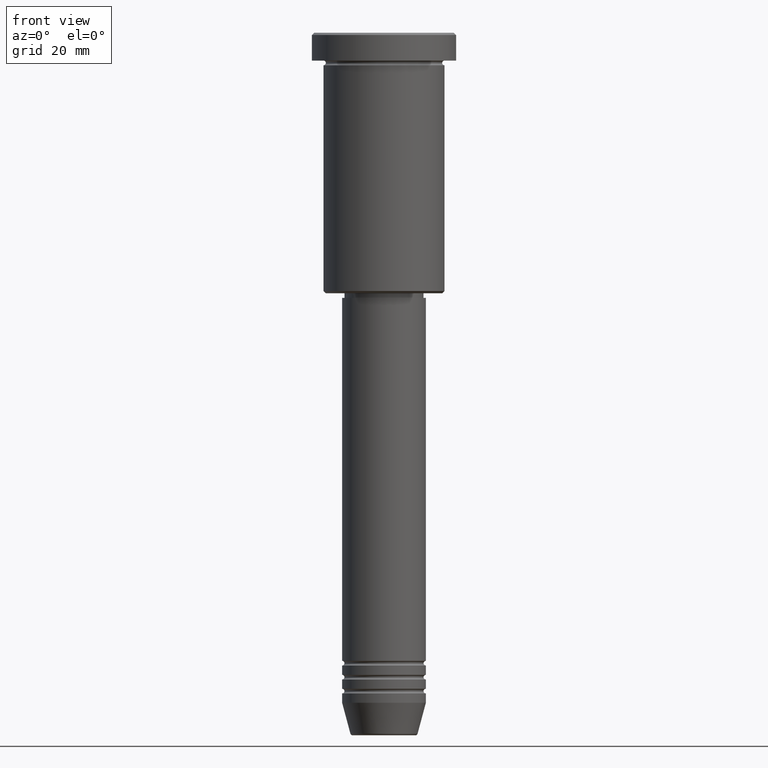
[diagram: clean part render]
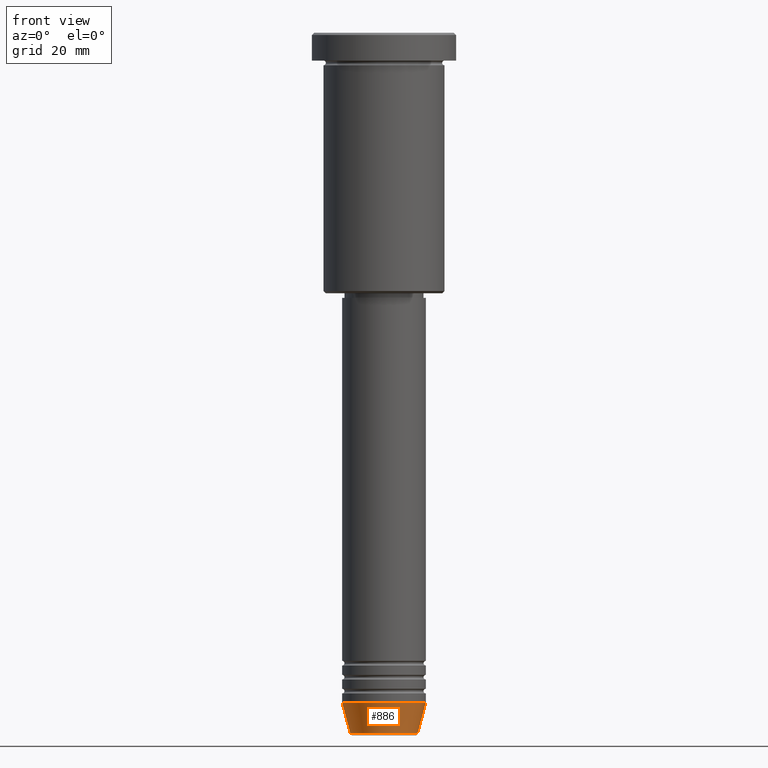
[diagram: same view with one face highlighted and labeled with its STEP entity id]
A machine part, front view. The second image highlights one B-rep face of the part: STEP entity #886.
In plain terms, the highlighted conical surface has half-angle 15 deg.
Its self-contained STEP definition (entity closure, byte-faithful):
#16 = CARTESIAN_POINT ( 'NONE',  ( -9.000000000000000000, 1.102182119232617714E-15, -144.0000000000000284 ) ) ;
#50 = VERTEX_POINT ( 'NONE', #456 ) ;
#62 = CARTESIAN_POINT ( 'NONE',  ( -7.223655072137189492, 9.934123627281765110E-16, -150.6294095225512990 ) ) ;
#110 = CARTESIAN_POINT ( 'NONE',  ( 9.000000000000000000, 0.000000000000000000, -144.0000000000000284 ) ) ;
#145 = CARTESIAN_POINT ( 'NONE',  ( 0.000000000000000000, 0.000000000000000000, -150.6294095225512990 ) ) ;
#165 = ORIENTED_EDGE ( 'NONE', *, *, #820, .F. ) ;
#193 = LINE ( 'NONE', #261, #332 ) ;
#261 = CARTESIAN_POINT ( 'NONE',  ( 9.000000000000000000, 0.000000000000000000, -144.0000000000000284 ) ) ;
#332 = VECTOR ( 'NONE', #438, 1000.000000000000000 ) ;
#366 = DIRECTION ( 'NONE',  ( 1.000000000000000000, 0.000000000000000000, 0.000000000000000000 ) ) ;
#392 = ORIENTED_EDGE ( 'NONE', *, *, #1053, .F. ) ;
#430 = CIRCLE ( 'NONE', #837, 9.000000000000000000 ) ;
#438 = DIRECTION ( 'NONE',  ( 0.2588190451025213501, 0.000000000000000000, 0.9659258262890680902 ) ) ;
#456 = CARTESIAN_POINT ( 'NONE',  ( 7.223655072137188604, 0.000000000000000000, -150.6294095225512990 ) ) ;
#486 = CIRCLE ( 'NONE', #1027, 7.223655072137188604 ) ;
#487 = VERTEX_POINT ( 'NONE', #110 ) ;
#489 = ORIENTED_EDGE ( 'NONE', *, *, #941, .T. ) ;
#542 = CARTESIAN_POINT ( 'NONE',  ( 0.000000000000000000, 0.000000000000000000, -144.0000000000000284 ) ) ;
#552 = DIRECTION ( 'NONE',  ( -0.000000000000000000, -0.000000000000000000, 1.000000000000000000 ) ) ;
#579 = CARTESIAN_POINT ( 'NONE',  ( -9.000000000000000000, 1.102182119232617714E-15, -144.0000000000000284 ) ) ;
#619 = DIRECTION ( 'NONE',  ( -0.000000000000000000, -0.000000000000000000, 1.000000000000000000 ) ) ;
#645 = VERTEX_POINT ( 'NONE', #62 ) ;
#691 = VECTOR ( 'NONE', #1040, 1000.000000000000000 ) ;
#705 = FACE_OUTER_BOUND ( 'NONE', #917, .T. ) ;
#770 = DIRECTION ( 'NONE',  ( -0.000000000000000000, -0.000000000000000000, 1.000000000000000000 ) ) ;
#806 = CARTESIAN_POINT ( 'NONE',  ( 0.000000000000000000, 0.000000000000000000, -144.0000000000000284 ) ) ;
#820 = EDGE_CURVE ( 'NONE', #1076, #487, #430, .T. ) ;
#837 = AXIS2_PLACEMENT_3D ( 'NONE', #542, #552, #1162 ) ;
#841 = EDGE_CURVE ( 'NONE', #50, #487, #193, .T. ) ;
#845 = LINE ( 'NONE', #16, #691 ) ;
#886 = ADVANCED_FACE ( 'NONE', ( #705 ), #1087, .T. ) ;
#917 = EDGE_LOOP ( 'NONE', ( #392, #489, #1018, #165 ) ) ;
#941 = EDGE_CURVE ( 'NONE', #645, #50, #486, .T. ) ;
#1018 = ORIENTED_EDGE ( 'NONE', *, *, #841, .T. ) ;
#1027 = AXIS2_PLACEMENT_3D ( 'NONE', #145, #770, #1131 ) ;
#1040 = DIRECTION ( 'NONE',  ( -0.2588190451025213501, 3.169619151431772337E-17, 0.9659258262890680902 ) ) ;
#1047 = AXIS2_PLACEMENT_3D ( 'NONE', #806, #619, #366 ) ;
#1053 = EDGE_CURVE ( 'NONE', #645, #1076, #845, .T. ) ;
#1076 = VERTEX_POINT ( 'NONE', #579 ) ;
#1087 = CONICAL_SURFACE ( 'NONE', #1047, 9.000000000000000000, 0.2617993877991500740 ) ;
#1131 = DIRECTION ( 'NONE',  ( 1.000000000000000000, 0.000000000000000000, 0.000000000000000000 ) ) ;
#1162 = DIRECTION ( 'NONE',  ( 1.000000000000000000, 0.000000000000000000, 0.000000000000000000 ) ) ;